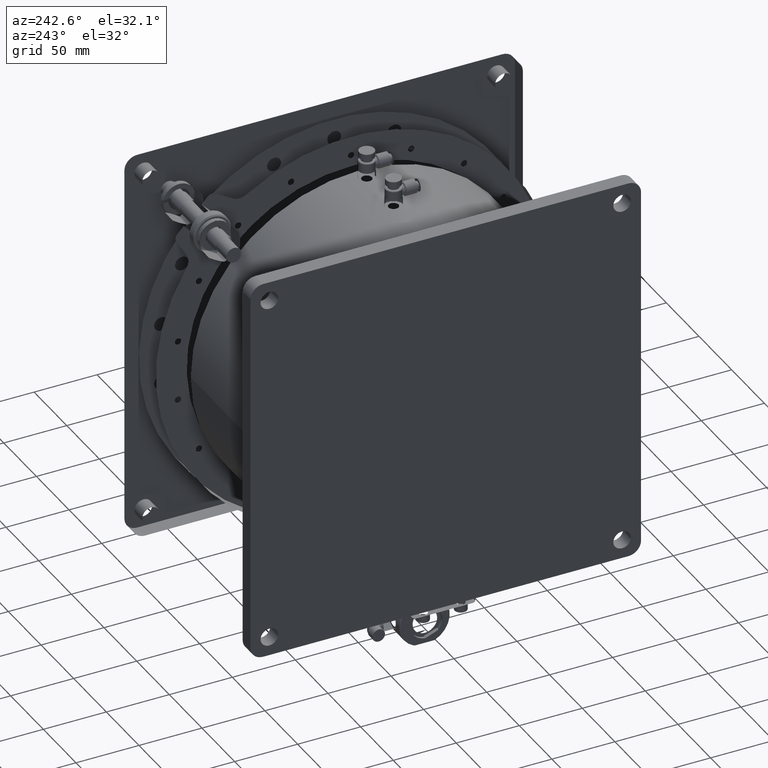
[diagram: clean part render]
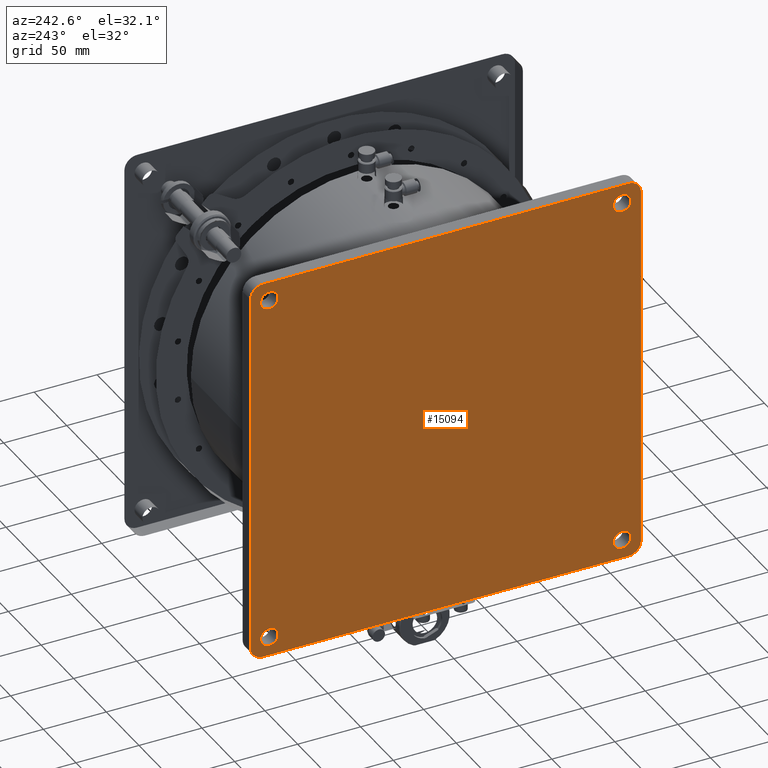
[diagram: same view with one face highlighted and labeled with its STEP entity id]
A machine part, auxiliary view. The second image highlights one B-rep face of the part: STEP entity #15094.
In plain terms, the highlighted planar face has unit normal (-1, 0, 0).
Its self-contained STEP definition (entity closure, byte-faithful):
#206 = ORIENTED_EDGE ( 'NONE', *, *, #16734, .T. ) ;
#784 = CARTESIAN_POINT ( 'NONE',  ( 382.3911129078834392, -179.3332541046120525, 450.2834046956847374 ) ) ;
#904 = DIRECTION ( 'NONE',  ( 0.000000000000000000, 0.000000000000000000, 1.000000000000000000 ) ) ;
#943 = CARTESIAN_POINT ( 'NONE',  ( 382.3911129078834392, -189.3332541046119957, 460.2834046956847374 ) ) ;
#1094 = ORIENTED_EDGE ( 'NONE', *, *, #13164, .T. ) ;
#1132 = VERTEX_POINT ( 'NONE', #15115 ) ;
#1415 = AXIS2_PLACEMENT_3D ( 'NONE', #27110, #4402, #7056 ) ;
#1597 = CARTESIAN_POINT ( 'NONE',  ( 382.3911129078834392, -174.3332541046114272, 465.2834046956851921 ) ) ;
#1650 = EDGE_LOOP ( 'NONE', ( #24347, #10861, #23638, #4631, #8948, #206, #14782, #4846 ) ) ;
#2975 = DIRECTION ( 'NONE',  ( 1.000000000000000000, 0.000000000000000000, 0.000000000000000000 ) ) ;
#3084 = VERTEX_POINT ( 'NONE', #7801 ) ;
#3108 = CARTESIAN_POINT ( 'NONE',  ( 382.3911129078834392, 110.6667458953879759, 460.2834046956847942 ) ) ;
#3714 = EDGE_CURVE ( 'NONE', #3084, #3084, #7273, .T. ) ;
#3726 = VECTOR ( 'NONE', #4227, 1000.000000000000000 ) ;
#4210 = CIRCLE ( 'NONE', #11719, 7.000000000000006217 ) ;
#4227 = DIRECTION ( 'NONE',  ( -0.000000000000000000, -1.000000000000000000, 0.000000000000000000 ) ) ;
#4402 = DIRECTION ( 'NONE',  ( -1.000000000000000000, 0.000000000000000000, 0.000000000000000000 ) ) ;
#4553 = CIRCLE ( 'NONE', #27133, 10.00000000000000888 ) ;
#4631 = ORIENTED_EDGE ( 'NONE', *, *, #16846, .T. ) ;
#4733 = CARTESIAN_POINT ( 'NONE',  ( 382.3911129078834392, -189.3332541046119957, 750.2834046956847942 ) ) ;
#4846 = ORIENTED_EDGE ( 'NONE', *, *, #20607, .T. ) ;
#5589 = ORIENTED_EDGE ( 'NONE', *, *, #27590, .T. ) ;
#6222 = AXIS2_PLACEMENT_3D ( 'NONE', #22508, #13224, #26797 ) ;
#6770 = EDGE_CURVE ( 'NONE', #28866, #7354, #4553, .T. ) ;
#7056 = DIRECTION ( 'NONE',  ( 0.000000000000000000, 0.000000000000000000, 1.000000000000000000 ) ) ;
#7273 = CIRCLE ( 'NONE', #11038, 7.000000000000006217 ) ;
#7354 = VERTEX_POINT ( 'NONE', #22157 ) ;
#7444 = CARTESIAN_POINT ( 'NONE',  ( 382.3911129078834392, -174.3332541046120809, 745.2834046956846805 ) ) ;
#7492 = EDGE_CURVE ( 'NONE', #7354, #21931, #9601, .T. ) ;
#7801 = CARTESIAN_POINT ( 'NONE',  ( 382.3911129078834392, -174.3332541046120809, 752.2834046956846805 ) ) ;
#8310 = VECTOR ( 'NONE', #27312, 1000.000000000000000 ) ;
#8411 = DIRECTION ( 'NONE',  ( 1.000000000000000000, 0.000000000000000000, 0.000000000000000000 ) ) ;
#8642 = LINE ( 'NONE', #15717, #3726 ) ;
#8940 = VERTEX_POINT ( 'NONE', #4733 ) ;
#8948 = ORIENTED_EDGE ( 'NONE', *, *, #15650, .T. ) ;
#9311 = CARTESIAN_POINT ( 'NONE',  ( 382.3911129078834392, 120.6667458953879901, 605.2834046956849079 ) ) ;
#9601 = LINE ( 'NONE', #9311, #8310 ) ;
#10120 = VERTEX_POINT ( 'NONE', #19120 ) ;
#10190 = DIRECTION ( 'NONE',  ( 0.000000000000000000, 0.000000000000000000, 1.000000000000000000 ) ) ;
#10294 = VERTEX_POINT ( 'NONE', #943 ) ;
#10334 = AXIS2_PLACEMENT_3D ( 'NONE', #25534, #2975, #22735 ) ;
#10459 = DIRECTION ( 'NONE',  ( 0.000000000000000000, 0.000000000000000000, 1.000000000000000000 ) ) ;
#10484 = FACE_BOUND ( 'NONE', #20486, .T. ) ;
#10590 = CARTESIAN_POINT ( 'NONE',  ( 382.3911129078834392, 110.6667458953879759, 760.2834046956847942 ) ) ;
#10839 = CARTESIAN_POINT ( 'NONE',  ( 382.3911129078834392, -34.33325410461189620, 760.2834046956847942 ) ) ;
#10861 = ORIENTED_EDGE ( 'NONE', *, *, #6770, .T. ) ;
#11038 = AXIS2_PLACEMENT_3D ( 'NONE', #7444, #21018, #16594 ) ;
#11619 = PLANE ( 'NONE',  #1415 ) ;
#11719 = AXIS2_PLACEMENT_3D ( 'NONE', #28618, #8411, #10190 ) ;
#12006 = CARTESIAN_POINT ( 'NONE',  ( 382.3911129078834392, 110.6667458953879759, 450.2834046956847374 ) ) ;
#12383 = EDGE_LOOP ( 'NONE', ( #19776 ) ) ;
#12385 = CARTESIAN_POINT ( 'NONE',  ( 382.3911129078834392, -179.3332541046120241, 460.2834046956847374 ) ) ;
#12683 = CIRCLE ( 'NONE', #14562, 10.00000000000000888 ) ;
#13164 = EDGE_CURVE ( 'NONE', #17952, #17952, #4210, .T. ) ;
#13224 = DIRECTION ( 'NONE',  ( -1.000000000000000000, 0.000000000000000000, 0.000000000000000000 ) ) ;
#13462 = EDGE_LOOP ( 'NONE', ( #1094 ) ) ;
#13633 = CARTESIAN_POINT ( 'NONE',  ( 382.3911129078834392, 110.6667458953879759, 750.2834046956847942 ) ) ;
#14562 = AXIS2_PLACEMENT_3D ( 'NONE', #3108, #25664, #904 ) ;
#14782 = ORIENTED_EDGE ( 'NONE', *, *, #28474, .T. ) ;
#14874 = DIRECTION ( 'NONE',  ( 0.000000000000000000, 0.000000000000000000, 1.000000000000000000 ) ) ;
#15094 = ADVANCED_FACE ( 'NONE', ( #10484, #19488, #28489, #20471, #17267 ), #11619, .T. ) ;
#15115 = CARTESIAN_POINT ( 'NONE',  ( 382.3911129078834392, 105.6667458953879191, 472.2834046956851921 ) ) ;
#15506 = AXIS2_PLACEMENT_3D ( 'NONE', #12385, #23600, #10459 ) ;
#15650 = EDGE_CURVE ( 'NONE', #24469, #19263, #8642, .T. ) ;
#15717 = CARTESIAN_POINT ( 'NONE',  ( 382.3911129078834392, -34.33325410461189620, 450.2834046956847942 ) ) ;
#15933 = AXIS2_PLACEMENT_3D ( 'NONE', #1597, #28589, #14874 ) ;
#16340 = EDGE_LOOP ( 'NONE', ( #5589 ) ) ;
#16594 = DIRECTION ( 'NONE',  ( 0.000000000000000000, 0.000000000000000000, 1.000000000000000000 ) ) ;
#16734 = EDGE_CURVE ( 'NONE', #19263, #10294, #24941, .T. ) ;
#16846 = EDGE_CURVE ( 'NONE', #21931, #24469, #12683, .T. ) ;
#17267 = FACE_BOUND ( 'NONE', #12383, .T. ) ;
#17763 = DIRECTION ( 'NONE',  ( 0.000000000000000000, 0.000000000000000000, 1.000000000000000000 ) ) ;
#17873 = VECTOR ( 'NONE', #18360, 1000.000000000000000 ) ;
#17952 = VERTEX_POINT ( 'NONE', #24433 ) ;
#18130 = CARTESIAN_POINT ( 'NONE',  ( 382.3911129078834392, 120.6667458953879901, 460.2834046956847942 ) ) ;
#18288 = CIRCLE ( 'NONE', #15933, 7.000000000000006217 ) ;
#18360 = DIRECTION ( 'NONE',  ( 0.000000000000000000, 0.000000000000000000, 1.000000000000000000 ) ) ;
#18958 = CIRCLE ( 'NONE', #6222, 10.00000000000000888 ) ;
#19120 = CARTESIAN_POINT ( 'NONE',  ( 382.3911129078834392, -174.3332541046114272, 472.2834046956851921 ) ) ;
#19263 = VERTEX_POINT ( 'NONE', #784 ) ;
#19488 = FACE_BOUND ( 'NONE', #16340, .T. ) ;
#19768 = CARTESIAN_POINT ( 'NONE',  ( 382.3911129078834392, -179.3332541046120525, 760.2834046956847942 ) ) ;
#19776 = ORIENTED_EDGE ( 'NONE', *, *, #25013, .T. ) ;
#20135 = LINE ( 'NONE', #24851, #17873 ) ;
#20428 = DIRECTION ( 'NONE',  ( 0.000000000000000000, 1.000000000000000000, -0.000000000000000000 ) ) ;
#20471 = FACE_BOUND ( 'NONE', #13462, .T. ) ;
#20486 = EDGE_LOOP ( 'NONE', ( #24428 ) ) ;
#20607 = EDGE_CURVE ( 'NONE', #8940, #27733, #18958, .T. ) ;
#21018 = DIRECTION ( 'NONE',  ( 1.000000000000000000, 0.000000000000000000, 0.000000000000000000 ) ) ;
#21931 = VERTEX_POINT ( 'NONE', #18130 ) ;
#22157 = CARTESIAN_POINT ( 'NONE',  ( 382.3911129078834392, 120.6667458953879759, 750.2834046956847942 ) ) ;
#22508 = CARTESIAN_POINT ( 'NONE',  ( 382.3911129078834392, -179.3332541046120241, 750.2834046956847942 ) ) ;
#22631 = DIRECTION ( 'NONE',  ( -1.000000000000000000, 0.000000000000000000, 0.000000000000000000 ) ) ;
#22735 = DIRECTION ( 'NONE',  ( 0.000000000000000000, 0.000000000000000000, 1.000000000000000000 ) ) ;
#22880 = EDGE_CURVE ( 'NONE', #27733, #28866, #28840, .T. ) ;
#23235 = VECTOR ( 'NONE', #20428, 1000.000000000000000 ) ;
#23600 = DIRECTION ( 'NONE',  ( -1.000000000000000000, 0.000000000000000000, 0.000000000000000000 ) ) ;
#23638 = ORIENTED_EDGE ( 'NONE', *, *, #7492, .T. ) ;
#23994 = CIRCLE ( 'NONE', #10334, 7.000000000000006217 ) ;
#24347 = ORIENTED_EDGE ( 'NONE', *, *, #22880, .T. ) ;
#24428 = ORIENTED_EDGE ( 'NONE', *, *, #3714, .T. ) ;
#24433 = CARTESIAN_POINT ( 'NONE',  ( 382.3911129078834392, 105.6667458953879191, 752.2834046956846805 ) ) ;
#24469 = VERTEX_POINT ( 'NONE', #12006 ) ;
#24851 = CARTESIAN_POINT ( 'NONE',  ( 382.3911129078834392, -189.3332541046119957, 605.2834046956849079 ) ) ;
#24941 = CIRCLE ( 'NONE', #15506, 10.00000000000000888 ) ;
#25013 = EDGE_CURVE ( 'NONE', #10120, #10120, #18288, .T. ) ;
#25534 = CARTESIAN_POINT ( 'NONE',  ( 382.3911129078834392, 105.6667458953879191, 465.2834046956851921 ) ) ;
#25664 = DIRECTION ( 'NONE',  ( -1.000000000000000000, 0.000000000000000000, 0.000000000000000000 ) ) ;
#26797 = DIRECTION ( 'NONE',  ( 0.000000000000000000, 0.000000000000000000, 1.000000000000000000 ) ) ;
#27110 = CARTESIAN_POINT ( 'NONE',  ( 382.3911129078834392, -34.33325410461189620, 605.2834046956849079 ) ) ;
#27133 = AXIS2_PLACEMENT_3D ( 'NONE', #13633, #22631, #17763 ) ;
#27312 = DIRECTION ( 'NONE',  ( -0.000000000000000000, -0.000000000000000000, -1.000000000000000000 ) ) ;
#27590 = EDGE_CURVE ( 'NONE', #1132, #1132, #23994, .T. ) ;
#27733 = VERTEX_POINT ( 'NONE', #19768 ) ;
#28474 = EDGE_CURVE ( 'NONE', #10294, #8940, #20135, .T. ) ;
#28489 = FACE_OUTER_BOUND ( 'NONE', #1650, .T. ) ;
#28589 = DIRECTION ( 'NONE',  ( 1.000000000000000000, 0.000000000000000000, 0.000000000000000000 ) ) ;
#28618 = CARTESIAN_POINT ( 'NONE',  ( 382.3911129078834392, 105.6667458953879191, 745.2834046956846805 ) ) ;
#28840 = LINE ( 'NONE', #10839, #23235 ) ;
#28866 = VERTEX_POINT ( 'NONE', #10590 ) ;